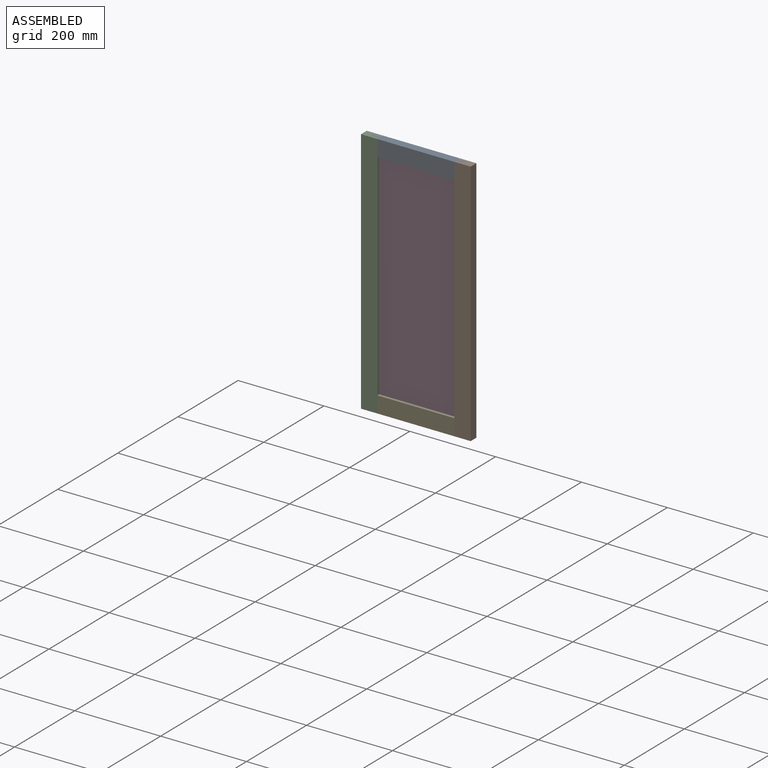
[diagram: assembled view]
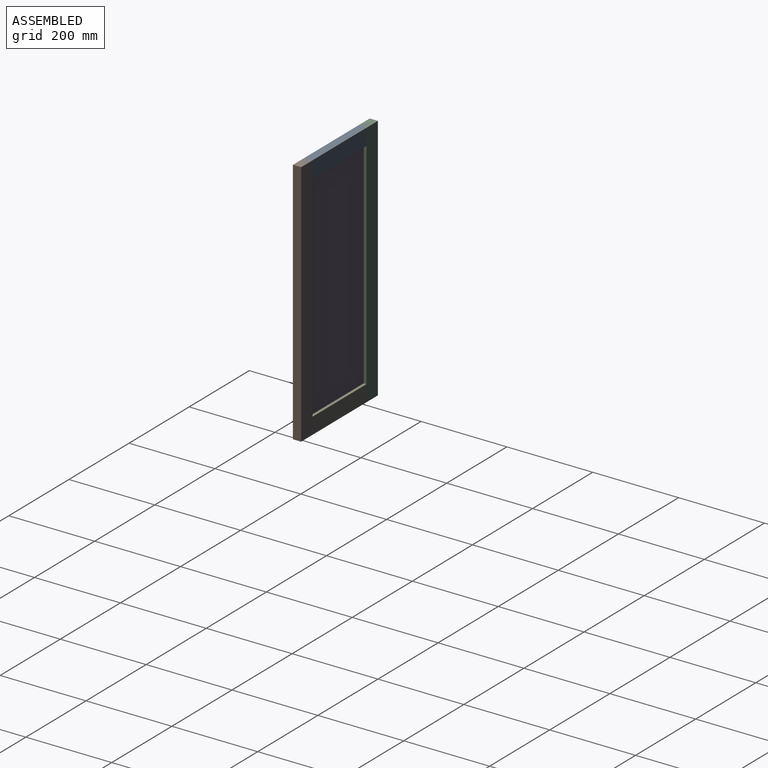
[diagram: assembled view, second angle]
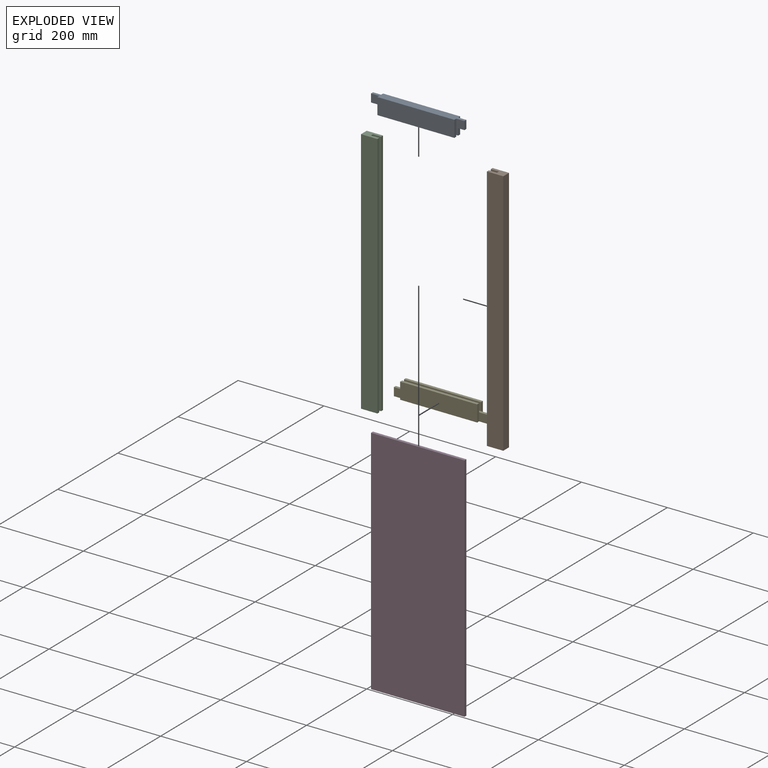
[diagram: exploded view]
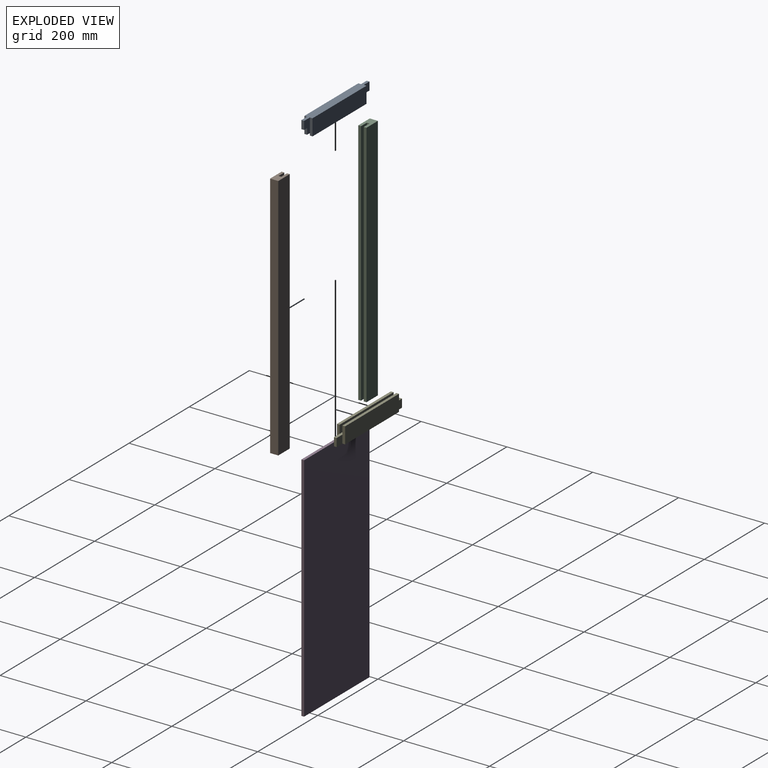
[diagram: exploded view, second angle]
ASSEMBLY  parts=5 mates=4
PART A: 18 faces, bbox 38.1x217.5x19.1 mm
  f0: plane 179.39x6.35mm, normal (1,0,0), area 1139.1mm2, adj f5,f8,f11,f13
  f1: plane 19.05x6.35mm, normal (0,-1,0), area 121mm2, adj f2,f9,f10,f16
  f2: plane 217.49x19.05mm, normal (-1,0,0), area 3659.3mm2, adj f1,f3,f5,f6,f10,f11,f12,f13
  f3: plane 179.39x38.1mm, normal (0,0,-1), area 6834.7mm2, adj f2,f4,f15,f17
  f4: plane 179.39x6.35mm, normal (1,0,0), area 1139.1mm2, adj f3,f7,f15,f17
  f5: plane 179.39x38.1mm, normal (0,0,1), area 6834.7mm2, adj f0,f2,f11,f13
  f6: plane 19.05x6.35mm, normal (0,1,0), area 121mm2, adj f2,f9,f12,f14
  f7: plane 179.39x19.05mm, normal (0,0,1), area 3417.3mm2, adj f4,f9,f15,f17
  f8: plane 179.39x19.05mm, normal (0,0,-1), area 3417.3mm2, adj f0,f9,f11,f13
  f9: plane 217.49x6.35mm, normal (1,0,0), area 1381mm2, adj f1,f6,f7,f8,f10,f12,f14,f16
  f10: plane 19.05x19.05mm, normal (0,0,1), area 362.9mm2, adj f1,f2,f9,f11
  f11: plane 38.1x6.35mm, normal (0,-1,0), area 241.9mm2, adj f0,f2,f5,f8,f10
  f12: plane 19.05x19.05mm, normal (0,0,1), area 362.9mm2, adj f2,f6,f9,f13
  f13: plane 38.1x6.35mm, normal (0,1,0), area 241.9mm2, adj f0,f2,f5,f8,f12
  f14: plane 19.05x19.05mm, normal (0,0,-1), area 362.9mm2, adj f2,f6,f9,f15
  f15: plane 38.1x6.35mm, normal (0,1,0), area 241.9mm2, adj f2,f3,f4,f7,f14
  f16: plane 19.05x19.05mm, normal (0,0,-1), area 362.9mm2, adj f1,f2,f9,f17
  f17: plane 38.1x6.35mm, normal (0,-1,0), area 241.9mm2, adj f2,f3,f4,f7,f16
PART B: 10 faces, bbox 38.1x577.9x19.1 mm
  f0: plane 577.85x6.35mm, normal (1,0,0), area 3669.3mm2, adj f1,f5,f6,f7
  f1: plane 38.1x19.05mm, normal (0,1,0), area 604.8mm2, adj f0,f2,f3,f4,f5,f7,f8,f9
  f2: plane 577.85x19.05mm, normal (-1,0,0), area 11008mm2, adj f1,f3,f5,f6
  f3: plane 577.85x38.1mm, normal (0,0,-1), area 22016.1mm2, adj f1,f2,f4,f6
  f4: plane 577.85x6.35mm, normal (1,0,0), area 3669.3mm2, adj f1,f3,f6,f9
  f5: plane 577.85x38.1mm, normal (0,0,1), area 22016.1mm2, adj f0,f1,f2,f6
  f6: plane 38.1x19.05mm, normal (0,-1,0), area 604.8mm2, adj f0,f2,f3,f4,f5,f7,f8,f9
  f7: plane 577.85x19.05mm, normal (0,0,-1), area 11008mm2, adj f0,f1,f6,f8
  f8: plane 577.85x6.35mm, normal (1,0,0), area 3669.3mm2, adj f1,f6,f7,f9
  f9: plane 577.85x19.05mm, normal (0,0,1), area 11008mm2, adj f1,f4,f6,f8
PART C: same geometry as B
PART D: 6 faces, bbox 217.5x6.4x539.8 mm
  f0: plane 539.75x6.35mm, normal (-1,0,0), area 3427.4mm2, adj f1,f3,f4,f5
  f1: plane 217.49x6.35mm, normal (0,0,-1), area 1381mm2, adj f0,f2,f4,f5
  f2: plane 539.75x6.35mm, normal (1,0,0), area 3427.4mm2, adj f1,f3,f4,f5
  f3: plane 217.49x6.35mm, normal (0,0,1), area 1381mm2, adj f0,f2,f4,f5
  f4: plane 539.75x217.49mm, normal (0,-1,0), area 117388.9mm2, adj f0,f1,f2,f3
  f5: plane 539.75x217.49mm, normal (0,1,0), area 117388.9mm2, adj f0,f1,f2,f3
PART E: same geometry as A
PLACE A rot(axis=(0.58,0.58,-0.58),120deg) t=(236.54,0,254)mm
PLACE B rot(axis=(0,0.71,0.71),180deg) t=(446.09,-19.05,0)mm
PLACE C rot(axis=(-1,0,0),90deg) t=(-190.5,-19.05,-577.85)mm
PLACE D t=(-1981.2,-6.35,-558.8)mm
PLACE E rot(axis=(-0.58,-0.58,-0.58),120deg) t=(236.54,-19.05,-831.85)mm
MATE fastened B.f8 <-> A.f6  axis (-1,0,0) through (236.54,-9.52,0)mm
MATE fastened A.f1 <-> C.f8  axis (-1,0,0) through (19.05,-9.52,0)mm
MATE fastened D.f3 <-> A.f9  axis (0,0,1) through (127.79,-9.53,-19.05)mm
MATE fastened E.f1 <-> C.f8  axis (-1,0,0) through (19.05,-9.53,-577.85)mm
